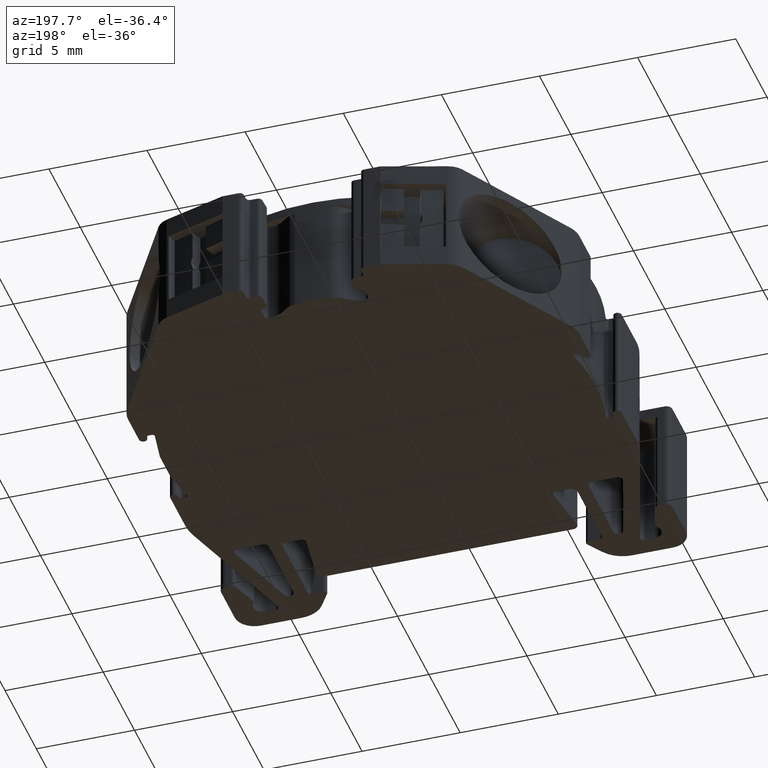
[diagram: clean part render]
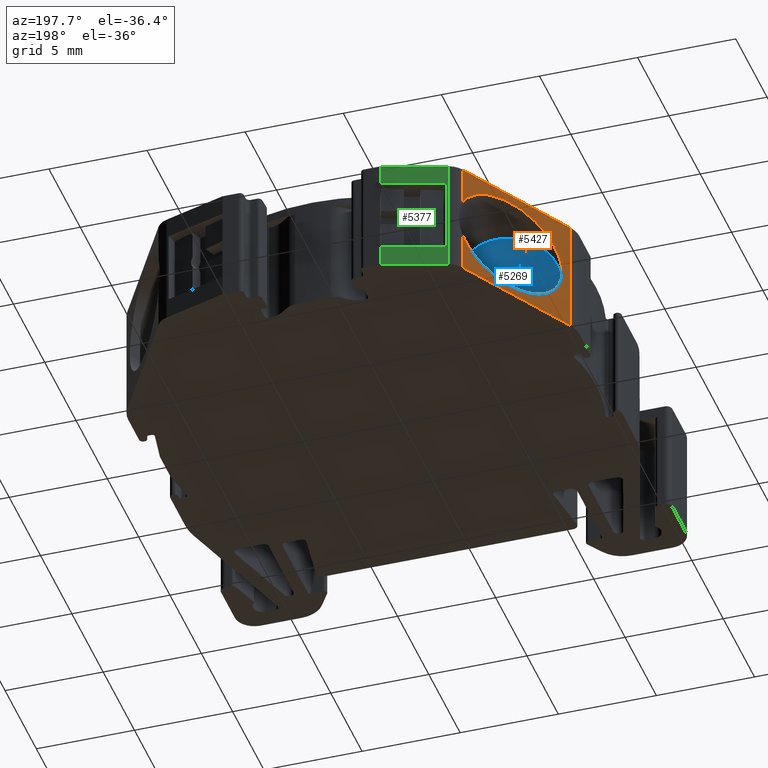
[diagram: same view with three faces highlighted in distinct colors, each labeled with its STEP entity id]
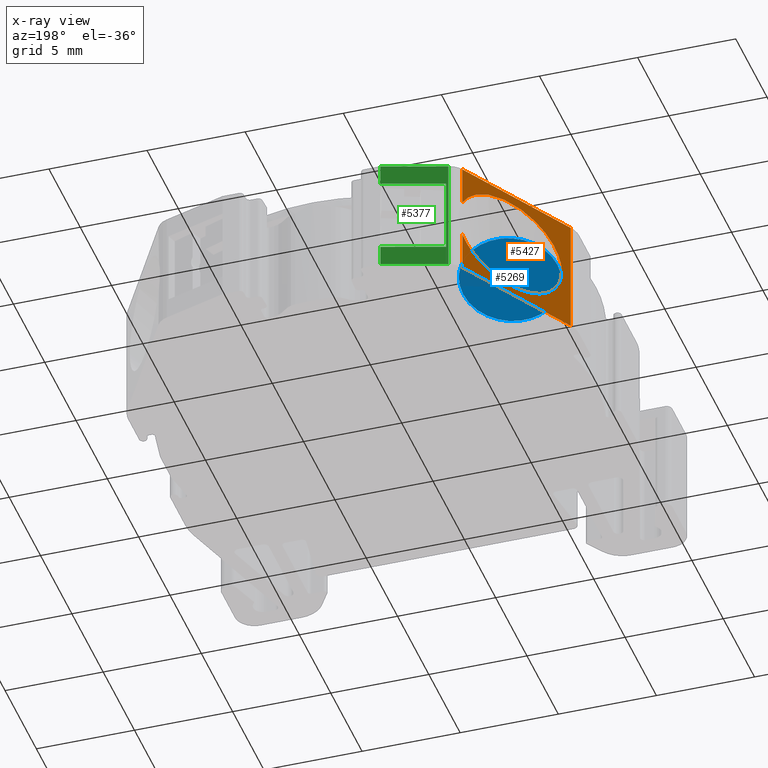
[diagram: x-ray of the same camera — body ghosted, the three highlighted faces saturated]
A machine part, auxiliary view with three faces highlighted in distinct colors.
The next image is the same camera in x-ray (body ghosted, the three faces saturated) — at least one of them is partly hidden behind the body in this view.
Their STEP definitions:

[orange] entity #5427 — the highlighted planar face has unit normal (-0.866, 0.5, 0).
#2 =( BOUNDED_CURVE ( )  B_SPLINE_CURVE ( 3, ( #335, #323, #363, #360 ),
 .UNSPECIFIED., .F., .T. ) 
 B_SPLINE_CURVE_WITH_KNOTS ( ( 4, 4 ),
 ( 0.3890162787022208900, 3.141592653589793100 ),
 .UNSPECIFIED. ) 
 CURVE ( )  GEOMETRIC_REPRESENTATION_ITEM ( )  RATIONAL_B_SPLINE_CURVE ( ( 1.000000000000000000, 0.4621893151999163500, 0.4621893151999163500, 1.000000000000000000 ) ) 
 REPRESENTATION_ITEM ( '' )  );
#323 = CARTESIAN_POINT ( 'NONE',  ( 282.6327842502189500, 453.9747394492209800, -44.15812955358330100 ) ) ;
#333 = CARTESIAN_POINT ( 'NONE',  ( 279.9868997377796500, 449.3919330427180500, -12.95259855432815500 ) ) ;
#335 = CARTESIAN_POINT ( 'NONE',  ( 283.5428208456585800, 455.5509690692698500, -47.43180405356584100 ) ) ;
#338 = LINE ( 'NONE', #333, #6203 ) ;
#339 = DIRECTION ( 'NONE',  ( 0.0000000000000000000, 0.0000000000000000000, 1.000000000000000000 ) ) ;
#360 = CARTESIAN_POINT ( 'NONE',  ( 280.2786402871751600, 449.8972424968989100, -48.38000000000001700 ) ) ;
#363 = CARTESIAN_POINT ( 'NONE',  ( 280.2786402871751600, 449.8972424968989100, -44.84197339220884300 ) ) ;
#369 = CARTESIAN_POINT ( 'NONE',  ( 283.5428208456588700, 455.5509690692694000, -12.95259855432815500 ) ) ;
#372 = LINE ( 'NONE', #396, #6297 ) ;
#382 = DIRECTION ( 'NONE',  ( -0.0000000000000000000, -0.0000000000000000000, -1.000000000000000000 ) ) ;
#396 = CARTESIAN_POINT ( 'NONE',  ( 283.5428208456589200, 455.5509690692695100, -12.95259855432815500 ) ) ;
#397 = LINE ( 'NONE', #369, #6239 ) ;
#400 = DIRECTION ( 'NONE',  ( -0.0000000000000000000, -0.0000000000000000000, -1.000000000000000000 ) ) ;
#585 = DIRECTION ( 'NONE',  ( -0.5000000000001237900, -0.8660254037843672100, 0.0000000000000000000 ) ) ;
#592 = LINE ( 'NONE', #607, #6390 ) ;
#598 = LINE ( 'NONE', #610, #6365 ) ;
#607 = CARTESIAN_POINT ( 'NONE',  ( 279.9868997377796500, 449.3919330427179900, -51.32999999999999800 ) ) ;
#610 = CARTESIAN_POINT ( 'NONE',  ( 283.5428208456584100, 455.5509690692698000, -45.43000000000000000 ) ) ;
#651 = DIRECTION ( 'NONE',  ( -0.5000000000000717200, -0.8660254037843973000, 0.0000000000000000000 ) ) ;
#1076 = ORIENTED_EDGE ( 'NONE', *, *, #5055, .T. ) ;
#1112 = ORIENTED_EDGE ( 'NONE', *, *, #5455, .T. ) ;
#1125 = ORIENTED_EDGE ( 'NONE', *, *, #5136, .F. ) ;
#1960 = CARTESIAN_POINT ( 'NONE',  ( 279.9868997377795900, 449.3919330427180500, -45.43000000000000000 ) ) ;
#2004 = CARTESIAN_POINT ( 'NONE',  ( 283.5428208456589800, 455.5509690692695700, -51.32999999999999800 ) ) ;
#2027 = CARTESIAN_POINT ( 'NONE',  ( 283.5428208456587500, 455.5509690692697400, -45.43000000000000000 ) ) ;
#2058 = CARTESIAN_POINT ( 'NONE',  ( 279.9868997377796500, 449.3919330427180500, -51.32999999999999800 ) ) ;
#2083 = CARTESIAN_POINT ( 'NONE',  ( 283.5428208456585800, 455.5509690692698500, -47.43180405356584100 ) ) ;
#2088 = CARTESIAN_POINT ( 'NONE',  ( 280.2786402871751600, 449.8972424968989100, -48.38000000000001700 ) ) ;
#2106 = CARTESIAN_POINT ( 'NONE',  ( 283.5428208456585300, 455.5509690692698000, -49.32819594643424200 ) ) ;
#2395 = ORIENTED_EDGE ( 'NONE', *, *, #5039, .T. ) ;
#2399 = ORIENTED_EDGE ( 'NONE', *, *, #5045, .T. ) ;
#2422 = ORIENTED_EDGE ( 'NONE', *, *, #5133, .T. ) ;
#2435 = ORIENTED_EDGE ( 'NONE', *, *, #5061, .T. ) ;
#2531 = EDGE_LOOP ( 'NONE', ( #1076, #2395, #1112, #2435, #2422, #2399, #1125 ) ) ;
#2690 = VERTEX_POINT ( 'NONE', #1960 ) ;
#2700 = VERTEX_POINT ( 'NONE', #2004 ) ;
#2718 = VERTEX_POINT ( 'NONE', #2027 ) ;
#2726 = VERTEX_POINT ( 'NONE', #2083 ) ;
#2755 = VERTEX_POINT ( 'NONE', #2058 ) ;
#2783 = VERTEX_POINT ( 'NONE', #2088 ) ;
#2818 = VERTEX_POINT ( 'NONE', #2106 ) ;
#3800 =( BOUNDED_CURVE ( )  B_SPLINE_CURVE ( 3, ( #4749, #4730, #4760, #4761 ),
 .UNSPECIFIED., .F., .T. ) 
 B_SPLINE_CURVE_WITH_KNOTS ( ( 4, 4 ),
 ( 3.141592653589793100, 5.894169028477334000 ),
 .UNSPECIFIED. ) 
 CURVE ( )  GEOMETRIC_REPRESENTATION_ITEM ( )  RATIONAL_B_SPLINE_CURVE ( ( 1.000000000000000000, 0.4621893151999264500, 0.4621893151999264500, 1.000000000000000000 ) ) 
 REPRESENTATION_ITEM ( '' )  );
#4644 = FACE_OUTER_BOUND ( 'NONE', #2531, .T. ) ;
#4645 = PLANE ( 'NONE',  #5812 ) ;
#4648 = CARTESIAN_POINT ( 'NONE',  ( 279.9868997377796500, 449.3919330427179900, -12.95259855432815500 ) ) ;
#4669 = DIRECTION ( 'NONE',  ( -0.8660254037843672100, 0.5000000000001237900, 0.0000000000000000000 ) ) ;
#4677 = DIRECTION ( 'NONE',  ( -0.5000000000001237900, -0.8660254037843672100, 0.0000000000000000000 ) ) ;
#4730 = CARTESIAN_POINT ( 'NONE',  ( 280.2786402871751600, 449.8972424968989700, -51.91802660779109900 ) ) ;
#4749 = CARTESIAN_POINT ( 'NONE',  ( 280.2786402871751600, 449.8972424968989100, -48.38000000000001700 ) ) ;
#4760 = CARTESIAN_POINT ( 'NONE',  ( 282.6327842502188900, 453.9747394492208100, -52.60187044641667600 ) ) ;
#4761 = CARTESIAN_POINT ( 'NONE',  ( 283.5428208456585300, 455.5509690692698000, -49.32819594643424200 ) ) ;
#5039 = EDGE_CURVE ( 'NONE', #2726, #2783, #2, .T. ) ;
#5045 = EDGE_CURVE ( 'NONE', #2755, #2690, #338, .T. ) ;
#5055 = EDGE_CURVE ( 'NONE', #2718, #2726, #372, .T. ) ;
#5061 = EDGE_CURVE ( 'NONE', #2818, #2700, #397, .T. ) ;
#5133 = EDGE_CURVE ( 'NONE', #2700, #2755, #592, .T. ) ;
#5136 = EDGE_CURVE ( 'NONE', #2718, #2690, #598, .T. ) ;
#5427 = ADVANCED_FACE ( 'NONE', ( #4644 ), #4645, .T. ) ;
#5455 = EDGE_CURVE ( 'NONE', #2783, #2818, #3800, .T. ) ;
#5812 = AXIS2_PLACEMENT_3D ( 'NONE', #4648, #4669, #4677 ) ;
#6203 = VECTOR ( 'NONE', #339, 1000.000000000000000 ) ;
#6239 = VECTOR ( 'NONE', #400, 1000.000000000000000 ) ;
#6297 = VECTOR ( 'NONE', #382, 1000.000000000000000 ) ;
#6365 = VECTOR ( 'NONE', #651, 999.9999999999998900 ) ;
#6390 = VECTOR ( 'NONE', #585, 1000.000000000000000 ) ;

[blue] entity #5269 — the highlighted planar face has unit normal (-0.3646, 0.9312, 0).
#3 =( BOUNDED_CURVE ( )  B_SPLINE_CURVE ( 3, ( #990, #971, #973, #968 ),
 .UNSPECIFIED., .F., .T. ) 
 B_SPLINE_CURVE_WITH_KNOTS ( ( 4, 4 ),
 ( 3.141592653589793100, 6.283185307179586200 ),
 .UNSPECIFIED. ) 
 CURVE ( )  GEOMETRIC_REPRESENTATION_ITEM ( )  RATIONAL_B_SPLINE_CURVE ( ( 1.000000000000000000, 0.3333333333333333700, 0.3333333333333333700, 1.000000000000000000 ) ) 
 REPRESENTATION_ITEM ( '' )  );
#968 = CARTESIAN_POINT ( 'NONE',  ( 285.1810362714562100, 450.9763744213944400, -48.38000000000001700 ) ) ;
#971 = CARTESIAN_POINT ( 'NONE',  ( 280.5145071897978800, 449.1491646061517100, -43.37999999999999500 ) ) ;
#973 = CARTESIAN_POINT ( 'NONE',  ( 285.1810362714561500, 450.9763744213944400, -43.37999999999999500 ) ) ;
#990 = CARTESIAN_POINT ( 'NONE',  ( 280.5145071897978800, 449.1491646061516600, -48.38000000000001700 ) ) ;
#1527 = ORIENTED_EDGE ( 'NONE', *, *, #5504, .T. ) ;
#1552 = ORIENTED_EDGE ( 'NONE', *, *, #4926, .T. ) ;
#2049 = CARTESIAN_POINT ( 'NONE',  ( 280.5145071897978800, 449.1491646061516600, -48.38000000000001700 ) ) ;
#2136 = CARTESIAN_POINT ( 'NONE',  ( 285.1810362714562100, 450.9763744213944400, -48.38000000000001700 ) ) ;
#2475 = EDGE_LOOP ( 'NONE', ( #1552, #1527 ) ) ;
#2748 = VERTEX_POINT ( 'NONE', #2049 ) ;
#2796 = VERTEX_POINT ( 'NONE', #2136 ) ;
#3190 = CARTESIAN_POINT ( 'NONE',  ( 280.5145071897978800, 449.1491646061517100, -53.38000000000003800 ) ) ;
#3205 = CARTESIAN_POINT ( 'NONE',  ( 285.1810362714562100, 450.9763744213944400, -48.38000000000001700 ) ) ;
#3206 = CARTESIAN_POINT ( 'NONE',  ( 280.5145071897978800, 449.1491646061516600, -48.38000000000001700 ) ) ;
#3223 = CARTESIAN_POINT ( 'NONE',  ( 285.1810362714561500, 450.9763744213944400, -53.38000000000003800 ) ) ;
#3804 =( BOUNDED_CURVE ( )  B_SPLINE_CURVE ( 3, ( #3205, #3223, #3190, #3206 ),
 .UNSPECIFIED., .F., .T. ) 
 B_SPLINE_CURVE_WITH_KNOTS ( ( 4, 4 ),
 ( 0.0000000000000000000, 3.141592653589793100 ),
 .UNSPECIFIED. ) 
 CURVE ( )  GEOMETRIC_REPRESENTATION_ITEM ( )  RATIONAL_B_SPLINE_CURVE ( ( 1.000000000000000000, 0.3333333333333333700, 0.3333333333333333700, 1.000000000000000000 ) ) 
 REPRESENTATION_ITEM ( '' )  );
#3866 = DIRECTION ( 'NONE',  ( -0.3646029606081443400, 0.9311630797641066200, 0.0000000000000000000 ) ) ;
#3904 = PLANE ( 'NONE',  #6512 ) ;
#3905 = CARTESIAN_POINT ( 'NONE',  ( 285.3816710290279300, 451.0549342657453200, -12.95259855432815500 ) ) ;
#3906 = DIRECTION ( 'NONE',  ( -0.9311630797641066200, -0.3646029606081443400, 0.0000000000000000000 ) ) ;
#3911 = FACE_OUTER_BOUND ( 'NONE', #2475, .T. ) ;
#4926 = EDGE_CURVE ( 'NONE', #2748, #2796, #3, .T. ) ;
#5269 = ADVANCED_FACE ( 'NONE', ( #3911 ), #3904, .T. ) ;
#5504 = EDGE_CURVE ( 'NONE', #2796, #2748, #3804, .T. ) ;
#6512 = AXIS2_PLACEMENT_3D ( 'NONE', #3905, #3866, #3906 ) ;

[green] entity #5377 — the highlighted planar face has unit normal (-0.3007, 0.9537, 0).
#326 = DIRECTION ( 'NONE',  ( 0.9537169507482717900, 0.3007057995041310100, -0.0000000000000000000 ) ) ;
#344 = LINE ( 'NONE', #359, #6202 ) ;
#359 = CARTESIAN_POINT ( 'NONE',  ( 284.1081404499379900, 456.0046860200179700, -50.28000000000001500 ) ) ;
#390 = LINE ( 'NONE', #401, #6238 ) ;
#401 = CARTESIAN_POINT ( 'NONE',  ( 284.1081404499382200, 456.0046860200180300, -12.95259855432815500 ) ) ;
#403 = DIRECTION ( 'NONE',  ( 0.0000000000000000000, 0.0000000000000000000, 1.000000000000000000 ) ) ;
#418 = CARTESIAN_POINT ( 'NONE',  ( 284.1081404499379900, 456.0046860200179700, -46.48000000000000400 ) ) ;
#438 = LINE ( 'NONE', #418, #6236 ) ;
#447 = DIRECTION ( 'NONE',  ( -0.9537169507482717900, -0.3007057995041310100, 0.0000000000000000000 ) ) ;
#471 = LINE ( 'NONE', #483, #6291 ) ;
#483 = CARTESIAN_POINT ( 'NONE',  ( 284.2141785495971400, 456.0381197044155200, -12.95259855432815500 ) ) ;
#484 = DIRECTION ( 'NONE',  ( -0.0000000000000000000, -0.0000000000000000000, -1.000000000000000000 ) ) ;
#764 = CARTESIAN_POINT ( 'NONE',  ( 284.1081404499379900, 456.0046860200179700, -51.32999999999999800 ) ) ;
#791 = LINE ( 'NONE', #764, #6472 ) ;
#794 = DIRECTION ( 'NONE',  ( -0.9537169507482717900, -0.3007057995041310100, 0.0000000000000000000 ) ) ;
#804 = LINE ( 'NONE', #825, #6470 ) ;
#825 = CARTESIAN_POINT ( 'NONE',  ( 287.2660676076495200, 457.0003766282129600, -45.43000000000000000 ) ) ;
#829 = DIRECTION ( 'NONE',  ( -0.9537169507481871900, -0.3007057995043989600, 0.0000000000000000000 ) ) ;
#1007 = VECTOR ( 'NONE', #3723, 1000.000000000000000 ) ;
#1056 = VECTOR ( 'NONE', #3698, 1000.000000000000000 ) ;
#1072 = ORIENTED_EDGE ( 'NONE', *, *, #5187, .T. ) ;
#1963 = CARTESIAN_POINT ( 'NONE',  ( 284.1081404499382200, 456.0046860200180800, -45.43000000000000000 ) ) ;
#1966 = CARTESIAN_POINT ( 'NONE',  ( 284.2141785495970800, 456.0381197044157500, -50.28000000000001500 ) ) ;
#1978 = CARTESIAN_POINT ( 'NONE',  ( 284.1081404499383900, 456.0046860200180800, -51.32999999999999800 ) ) ;
#2057 = CARTESIAN_POINT ( 'NONE',  ( 284.2141785495970800, 456.0381197044157500, -46.48000000000000400 ) ) ;
#2255 = CARTESIAN_POINT ( 'NONE',  ( 287.2660676076495200, 457.0003766282129600, -46.48000000000000400 ) ) ;
#2261 = CARTESIAN_POINT ( 'NONE',  ( 287.2660676076519600, 457.0003766282129600, -51.32999999999999800 ) ) ;
#2266 = CARTESIAN_POINT ( 'NONE',  ( 287.2660676076495200, 457.0003766282129600, -45.43000000000000000 ) ) ;
#2268 = CARTESIAN_POINT ( 'NONE',  ( 287.2660676076502600, 457.0003766282129000, -50.28000000000002200 ) ) ;
#2396 = ORIENTED_EDGE ( 'NONE', *, *, #5196, .F. ) ;
#2404 = ORIENTED_EDGE ( 'NONE', *, *, #5669, .F. ) ;
#2406 = ORIENTED_EDGE ( 'NONE', *, *, #5063, .T. ) ;
#2421 = ORIENTED_EDGE ( 'NONE', *, *, #5089, .T. ) ;
#2432 = ORIENTED_EDGE ( 'NONE', *, *, #5073, .T. ) ;
#2433 = ORIENTED_EDGE ( 'NONE', *, *, #5047, .T. ) ;
#2440 = ORIENTED_EDGE ( 'NONE', *, *, #5672, .F. ) ;
#2551 = EDGE_LOOP ( 'NONE', ( #2421, #2433, #2404, #1072, #2406, #2396, #2440, #2432 ) ) ;
#2652 = VERTEX_POINT ( 'NONE', #1978 ) ;
#2659 = VERTEX_POINT ( 'NONE', #1963 ) ;
#2675 = VERTEX_POINT ( 'NONE', #1966 ) ;
#2746 = VERTEX_POINT ( 'NONE', #2057 ) ;
#2918 = VERTEX_POINT ( 'NONE', #2266 ) ;
#2936 = VERTEX_POINT ( 'NONE', #2268 ) ;
#2948 = VERTEX_POINT ( 'NONE', #2255 ) ;
#2953 = VERTEX_POINT ( 'NONE', #2261 ) ;
#3693 = CARTESIAN_POINT ( 'NONE',  ( 287.2660676076495200, 457.0003766282129600, -12.95259855432815500 ) ) ;
#3698 = DIRECTION ( 'NONE',  ( 0.0000000000000000000, -0.0000000000000000000, 1.000000000000000000 ) ) ;
#3699 = LINE ( 'NONE', #3693, #1056 ) ;
#3711 = CARTESIAN_POINT ( 'NONE',  ( 287.2660676076511100, 457.0003766282129600, -12.95259855432815500 ) ) ;
#3723 = DIRECTION ( 'NONE',  ( 0.0000000000000000000, -0.0000000000000000000, 1.000000000000000000 ) ) ;
#3724 = LINE ( 'NONE', #3711, #1007 ) ;
#4452 = CARTESIAN_POINT ( 'NONE',  ( 284.1081404499379900, 456.0046860200179700, -12.95259855432815500 ) ) ;
#4465 = PLANE ( 'NONE',  #5748 ) ;
#4466 = DIRECTION ( 'NONE',  ( -0.3007057995041310100, 0.9537169507482717900, 0.0000000000000000000 ) ) ;
#4478 = FACE_OUTER_BOUND ( 'NONE', #2551, .T. ) ;
#4492 = DIRECTION ( 'NONE',  ( -0.9537169507482717900, -0.3007057995041310100, 0.0000000000000000000 ) ) ;
#5047 = EDGE_CURVE ( 'NONE', #2675, #2936, #344, .T. ) ;
#5063 = EDGE_CURVE ( 'NONE', #2652, #2659, #390, .T. ) ;
#5073 = EDGE_CURVE ( 'NONE', #2948, #2746, #438, .T. ) ;
#5089 = EDGE_CURVE ( 'NONE', #2746, #2675, #471, .T. ) ;
#5187 = EDGE_CURVE ( 'NONE', #2953, #2652, #791, .T. ) ;
#5196 = EDGE_CURVE ( 'NONE', #2918, #2659, #804, .T. ) ;
#5377 = ADVANCED_FACE ( 'NONE', ( #4478 ), #4465, .T. ) ;
#5669 = EDGE_CURVE ( 'NONE', #2953, #2936, #3724, .T. ) ;
#5672 = EDGE_CURVE ( 'NONE', #2948, #2918, #3699, .T. ) ;
#5748 = AXIS2_PLACEMENT_3D ( 'NONE', #4452, #4466, #4492 ) ;
#6202 = VECTOR ( 'NONE', #326, 1000.000000000000000 ) ;
#6236 = VECTOR ( 'NONE', #447, 1000.000000000000000 ) ;
#6238 = VECTOR ( 'NONE', #403, 1000.000000000000000 ) ;
#6291 = VECTOR ( 'NONE', #484, 1000.000000000000000 ) ;
#6470 = VECTOR ( 'NONE', #829, 1000.000000000000100 ) ;
#6472 = VECTOR ( 'NONE', #794, 1000.000000000000000 ) ;